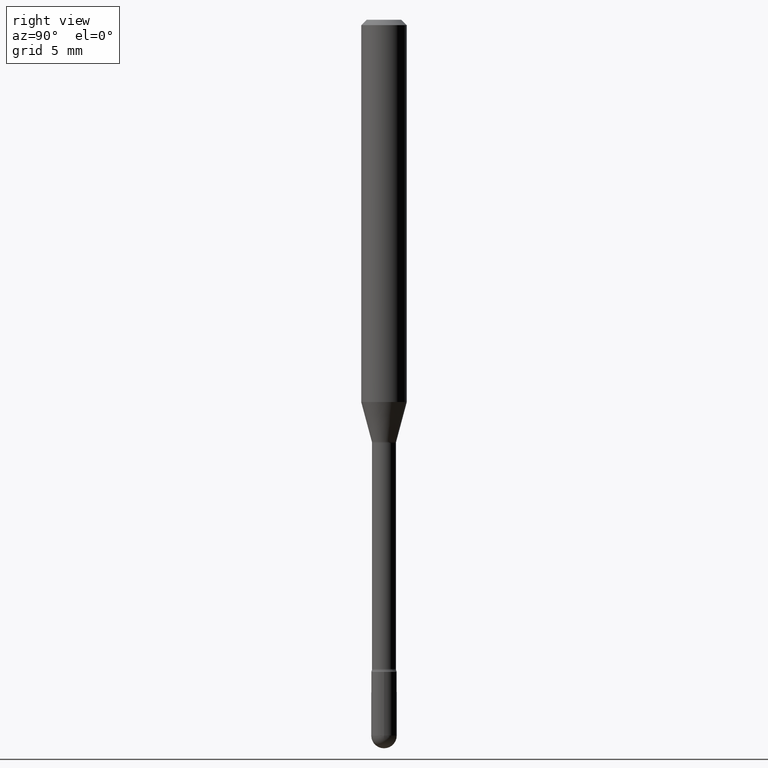
[diagram: clean part render]
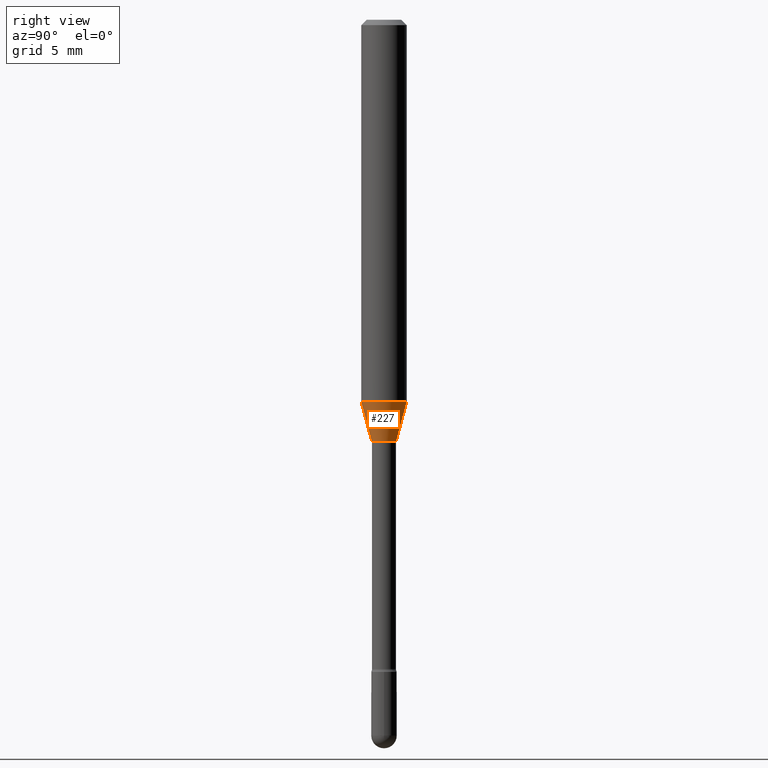
[diagram: same view with one face highlighted and labeled with its STEP entity id]
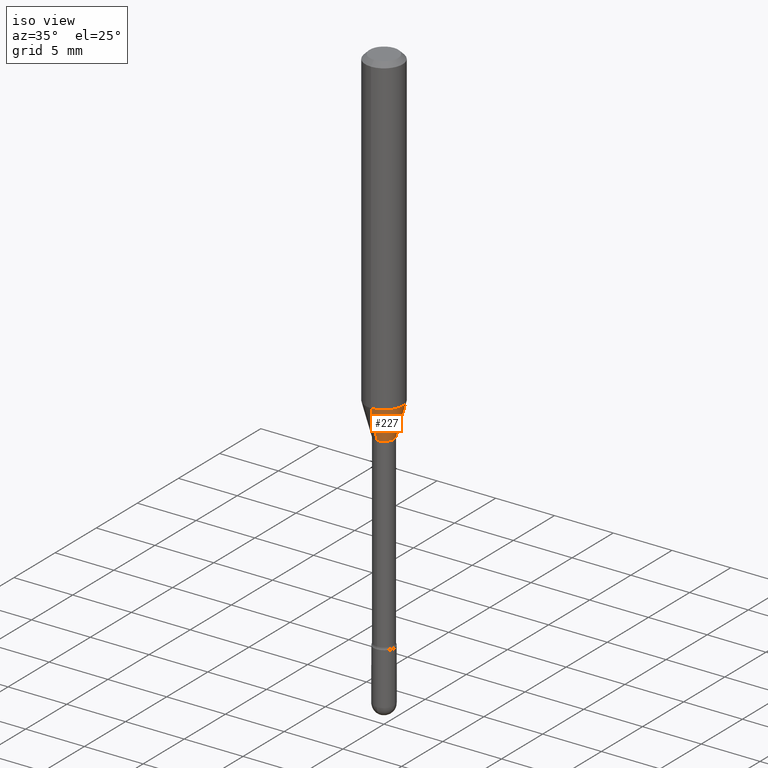
[diagram: same view with one face highlighted and labeled with its STEP entity id]
A machine part, right view. The second image highlights one B-rep face of the part: STEP entity #227.
A second angle (iso view) of the same face is appended — the face is thin or edge-on in the first view.
In plain terms, the highlighted conical surface has half-angle 15 deg.
Its self-contained STEP definition (entity closure, byte-faithful):
#48 = CARTESIAN_POINT ( 'NONE',  ( 3.407447217031445109E-16, 0.03341111260565993862, -1.158092501787273187 ) ) ;
#58 = CIRCLE ( 'NONE', #323, 0.06250000000000000000 ) ;
#73 = ORIENTED_EDGE ( 'NONE', *, *, #356, .T. ) ;
#82 = ORIENTED_EDGE ( 'NONE', *, *, #184, .T. ) ;
#93 = CARTESIAN_POINT ( 'NONE',  ( 2.374002335562008169E-16, 0.03341111260565993862, -1.158092501787273187 ) ) ;
#101 = CARTESIAN_POINT ( 'NONE',  ( -4.364351673553658835E-16, -0.06250000000000366374, -1.049531296095961297 ) ) ;
#109 = CARTESIAN_POINT ( 'NONE',  ( 2.832088531438495623E-29, -4.043444834813290827E-15, -1.158092501787272965 ) ) ;
#126 = ORIENTED_EDGE ( 'NONE', *, *, #250, .F. ) ;
#142 = DIRECTION ( 'NONE',  ( -2.445476960663988921E-29, 3.491469661165304910E-15, 1.000000000000000000 ) ) ;
#145 = VERTEX_POINT ( 'NONE', #101 ) ;
#150 = DIRECTION ( 'NONE',  ( -2.445476960663988921E-29, 3.491469661165304910E-15, 1.000000000000000000 ) ) ;
#158 = DIRECTION ( 'NONE',  ( -2.445476960663988921E-29, 3.491469661165304910E-15, 1.000000000000000000 ) ) ;
#169 = DIRECTION ( 'NONE',  ( 1.839019923739599526E-15, 0.2588190451025248473, 0.9659258262890670910 ) ) ;
#183 = AXIS2_PLACEMENT_3D ( 'NONE', #455, #142, #317 ) ;
#184 = EDGE_CURVE ( 'NONE', #371, #450, #202, .T. ) ;
#188 = EDGE_LOOP ( 'NONE', ( #82, #73, #126, #327 ) ) ;
#198 = FACE_OUTER_BOUND ( 'NONE', #188, .T. ) ;
#202 = CIRCLE ( 'NONE', #183, 0.03341111260566397706 ) ;
#227 = ADVANCED_FACE ( 'NONE', ( #198 ), #246, .T. ) ;
#246 = CONICAL_SURFACE ( 'NONE', #273, 0.03341111260566397706, 0.2617993877991501850 ) ;
#248 = VERTEX_POINT ( 'NONE', #554 ) ;
#250 = EDGE_CURVE ( 'NONE', #145, #248, #58, .T. ) ;
#257 = VECTOR ( 'NONE', #169, 39.37007874015748143 ) ;
#260 = CARTESIAN_POINT ( 'NONE',  ( -2.333085523452963922E-16, -0.03341111260566802243, -1.158092501787272965 ) ) ;
#273 = AXIS2_PLACEMENT_3D ( 'NONE', #109, #158, #423 ) ;
#317 = DIRECTION ( 'NONE',  ( -6.982962677686266711E-15, -1.000000000000000000, 4.088232597799138123E-15 ) ) ;
#323 = AXIS2_PLACEMENT_3D ( 'NONE', #381, #150, #372 ) ;
#327 = ORIENTED_EDGE ( 'NONE', *, *, #516, .F. ) ;
#354 = CARTESIAN_POINT ( 'NONE',  ( -2.333085523452963922E-16, -0.03341111260566802243, -1.158092501787272965 ) ) ;
#356 = EDGE_CURVE ( 'NONE', #450, #248, #389, .T. ) ;
#369 = VECTOR ( 'NONE', #435, 39.37007874015749564 ) ;
#371 = VERTEX_POINT ( 'NONE', #260 ) ;
#372 = DIRECTION ( 'NONE',  ( -6.982962677686265922E-15, -1.000000000000000000, 4.370956789862821150E-15 ) ) ;
#381 = CARTESIAN_POINT ( 'NONE',  ( 2.566604604098489247E-29, -3.664406678762549915E-15, -1.049531296095961519 ) ) ;
#389 = LINE ( 'NONE', #93, #257 ) ;
#423 = DIRECTION ( 'NONE',  ( -6.982962677686266711E-15, -1.000000000000000000, 4.088232597799138123E-15 ) ) ;
#435 = DIRECTION ( 'NONE',  ( -1.807323732225329350E-15, -0.2588190451025180194, 0.9659258262890689783 ) ) ;
#450 = VERTEX_POINT ( 'NONE', #48 ) ;
#455 = CARTESIAN_POINT ( 'NONE',  ( 2.832088531438495623E-29, -4.043444834813290827E-15, -1.158092501787272965 ) ) ;
#516 = EDGE_CURVE ( 'NONE', #371, #145, #558, .T. ) ;
#554 = CARTESIAN_POINT ( 'NONE',  ( 4.440892098500882541E-16, 0.06249999999999633626, -1.049531296095961741 ) ) ;
#558 = LINE ( 'NONE', #354, #369 ) ;